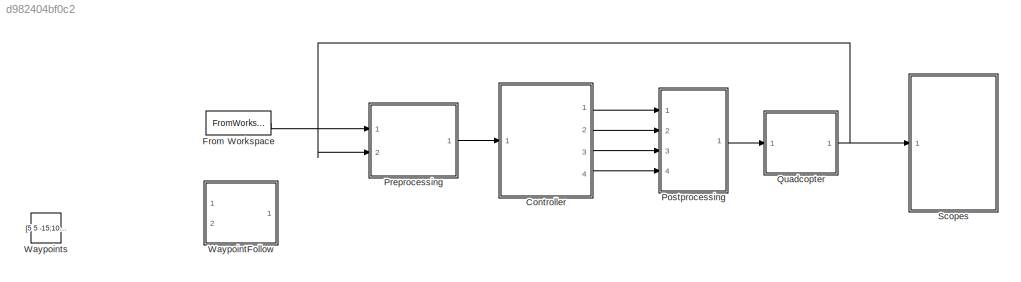
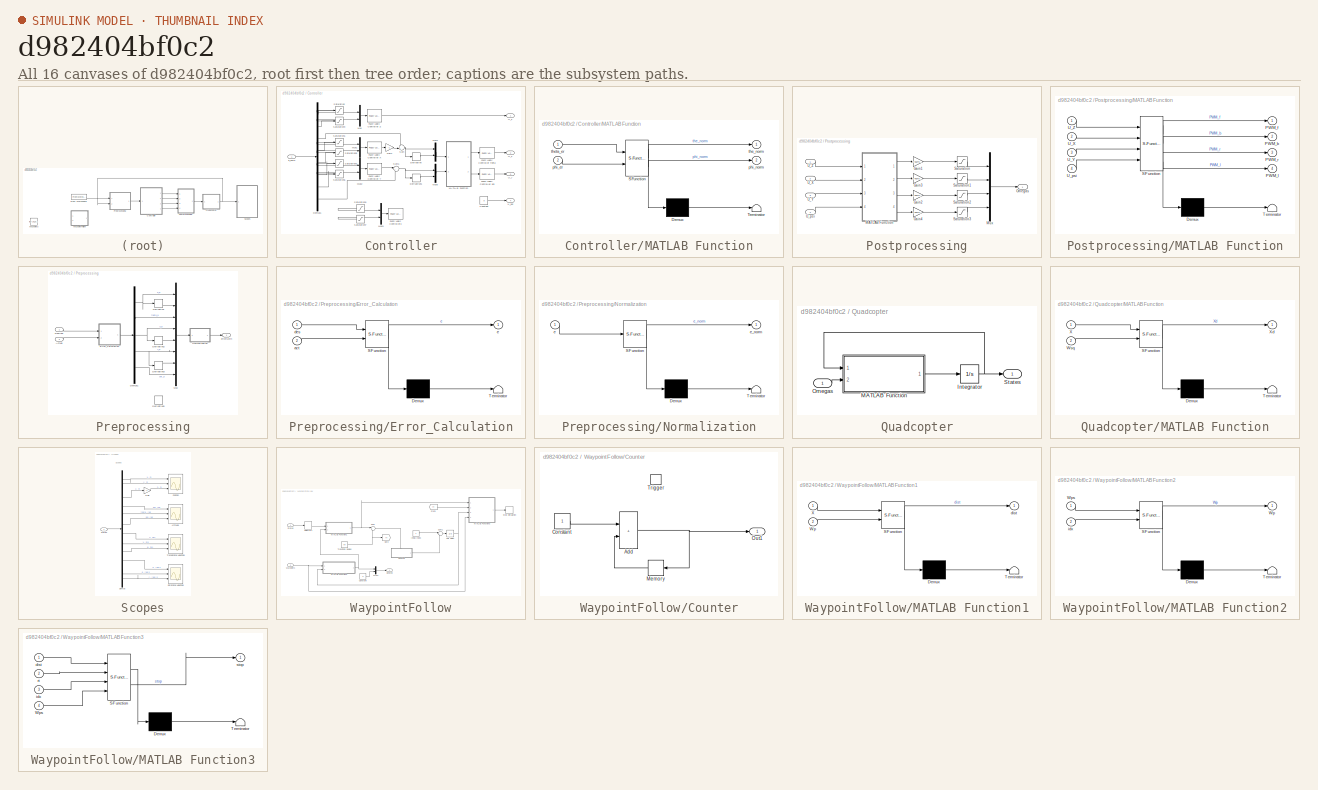
[diagram: thumbnail index - all 16 canvases of the model, root first then tree order]
MODEL slx_d982404bf0c2
KIND model
CONFIG AbsTol = auto
CONFIG EnableMultiTasking = off
CONFIG FixedStep = auto
CONFIG MaxStep = auto
CONFIG MinStep = auto
CONFIG RelTol = 1e-3
CONFIG SampleTimeConstraint = Unconstrained
CONFIG SolverName = VariableStepAuto
CONFIG StartTime = 0.0
CONFIG StopTime = 10
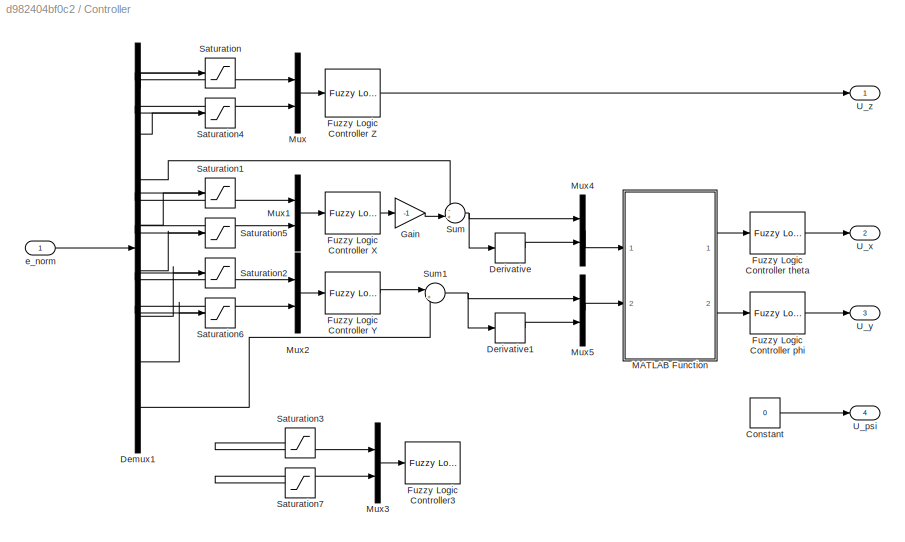
BLOCK [SubSystem] Controller
  Ports = [1, 4]
  RequestExecContextInheritance = off
BLOCK [Constant] Controller/Constant
  Value = 0
BLOCK [Demux] Controller/Demux1
  Outputs = 8
  Ports = [1, 8]
BLOCK [Derivative] Controller/Derivative
  CoefficientInTFapproximation = 1
BLOCK [Derivative] Controller/Derivative1
  CoefficientInTFapproximation = 1
BLOCK [Reference] Controller/Fuzzy Logic Controller X  REF=fuzblock/Fuzzy Logic   (lib defined in mdl_858b3b3e7478)
Controller
  Ports = [1, 1]
  SourceBlock = fuzblock/Fuzzy Logic \nController
  SourceProductBaseCode = FL
  SourceType = Fuzzy Inference System
BLOCK [Reference] Controller/Fuzzy Logic Controller Y  REF=fuzblock/Fuzzy Logic   (lib defined in mdl_858b3b3e7478)
Controller
  Ports = [1, 1]
  SourceBlock = fuzblock/Fuzzy Logic \nController
  SourceProductBaseCode = FL
  SourceType = Fuzzy Inference System
BLOCK [Reference] Controller/Fuzzy Logic Controller Z  REF=fuzblock/Fuzzy Logic   (lib defined in mdl_858b3b3e7478)
Controller
  Ports = [1, 1]
  SourceBlock = fuzblock/Fuzzy Logic \nController
  SourceProductBaseCode = FL
  SourceType = Fuzzy Inference System
BLOCK [Reference] Controller/Fuzzy Logic Controller phi  REF=fuzblock/Fuzzy Logic   (lib defined in mdl_858b3b3e7478)
Controller
  Ports = [1, 1]
  SourceBlock = fuzblock/Fuzzy Logic \nController
  SourceProductBaseCode = FL
  SourceType = Fuzzy Inference System
BLOCK [Reference] Controller/Fuzzy Logic Controller theta  REF=fuzblock/Fuzzy Logic   (lib defined in mdl_858b3b3e7478)
Controller
  Ports = [1, 1]
  SourceBlock = fuzblock/Fuzzy Logic \nController
  SourceProductBaseCode = FL
  SourceType = Fuzzy Inference System
BLOCK [Reference] Controller/Fuzzy Logic Controller3  REF=fuzblock/Fuzzy Logic   (lib defined in mdl_858b3b3e7478)
Controller
  Commented = on
  Ports = [1, 1]
  SourceBlock = fuzblock/Fuzzy Logic \nController
  SourceProductBaseCode = FL
  SourceType = Fuzzy Inference System
BLOCK [Gain] Controller/Gain
  Gain = -1
BLOCK [SubSystem] Controller/MATLAB Function
  ErrorFcn = Stateflow.Translate.translate
  PermitHierarchicalResolution = ExplicitOnly
  Ports = [2, 2]
  RequestExecContextInheritance = off
  SFBlockType = MATLAB Function
  TreatAsAtomicUnit = on
BLOCK [Demux] Controller/MATLAB Function/ Demux 
  Outputs = 1
  Ports = [1, 1]
BLOCK [S-Function] Controller/MATLAB Function/ SFunction 
  EnableBusSupport = on
  FunctionName = sf_sfun
  PortCounts = [2 3]
  Ports = [2, 3]
  SFcnIsStateOwnerBlock = off
  SFunctionDeploymentMode = off
  Tag = Stateflow S-Function 5
BLOCK [Terminator] Controller/MATLAB Function/ Terminator 
BLOCK [Inport] Controller/MATLAB Function/phi_er
  Port = 2
BLOCK [Outport] Controller/MATLAB Function/phi_norm
  Port = 2
  VectorParamsAs1DForOutWhenUnconnected = off
BLOCK [Outport] Controller/MATLAB Function/the_norm
  VectorParamsAs1DForOutWhenUnconnected = off
BLOCK [Inport] Controller/MATLAB Function/theta_er
BLOCK [Mux] Controller/Mux
  DisplayOption = bar
  Inputs = 2
  Ports = [2, 1]
BLOCK [Mux] Controller/Mux1
  DisplayOption = bar
  Inputs = 2
  Ports = [2, 1]
BLOCK [Mux] Controller/Mux2
  DisplayOption = bar
  Inputs = 2
  Ports = [2, 1]
BLOCK [Mux] Controller/Mux3
  Commented = on
  DisplayOption = bar
  Inputs = 2
  Ports = [2, 1]
BLOCK [Mux] Controller/Mux4
  DisplayOption = bar
  Inputs = 2
  Ports = [2, 1]
BLOCK [Mux] Controller/Mux5
  DisplayOption = bar
  Inputs = 2
  Ports = [2, 1]
BLOCK [Saturate] Controller/Saturation
  LowerLimit = -1
  UpperLimit = 1
  ZeroCross = off
BLOCK [Saturate] Controller/Saturation1
  LowerLimit = -1
  UpperLimit = 1
  ZeroCross = off
BLOCK [Saturate] Controller/Saturation2
  LowerLimit = -1
  UpperLimit = 1
  ZeroCross = off
BLOCK [Saturate] Controller/Saturation3
  Commented = on
  LowerLimit = -1
  UpperLimit = 1
  ZeroCross = off
BLOCK [Saturate] Controller/Saturation4
  LowerLimit = -3
  UpperLimit = 3
  ZeroCross = off
BLOCK [Saturate] Controller/Saturation5
  LowerLimit = -3
  UpperLimit = 3
  ZeroCross = off
BLOCK [Saturate] Controller/Saturation6
  LowerLimit = -3
  UpperLimit = 3
  ZeroCross = off
BLOCK [Saturate] Controller/Saturation7
  Commented = on
  LowerLimit = -3
  UpperLimit = 3
  ZeroCross = off
BLOCK [Sum] Controller/Sum
  Inputs = -+|
  Ports = [2, 1]
BLOCK [Sum] Controller/Sum1
  Inputs = |+-
  Ports = [2, 1]
BLOCK [Outport] Controller/U_psi
  Port = 4
  VectorParamsAs1DForOutWhenUnconnected = off
BLOCK [Outport] Controller/U_x
  Port = 2
  VectorParamsAs1DForOutWhenUnconnected = off
BLOCK [Outport] Controller/U_y
  Port = 3
  VectorParamsAs1DForOutWhenUnconnected = off
BLOCK [Outport] Controller/U_z
  VectorParamsAs1DForOutWhenUnconnected = off
BLOCK [Inport] Controller/e_norm
BLOCK [FromWorkspace] From Workspace
  VariableName = Waypoints
BLOCK [SubSystem] Postprocessing
  Ports = [4, 1]
  RequestExecContextInheritance = off
BLOCK [Gain] Postprocessing/Gain1
  Gain = 0.468*9.81/(4*2.98e-6)
BLOCK [Gain] Postprocessing/Gain2
  Gain = 0.468*9.81/(4*2.98e-6)
BLOCK [Gain] Postprocessing/Gain3
  Gain = 0.468*9.81/(4*2.98e-6)
BLOCK [Gain] Postprocessing/Gain4
  Gain = 0.468*9.81/(4*2.98e-6)
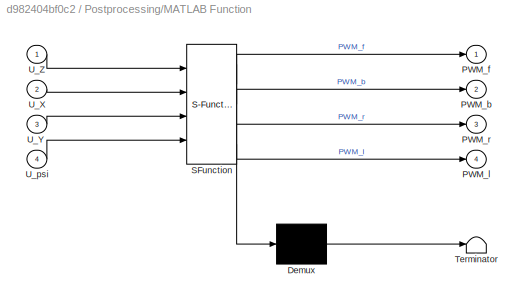
BLOCK [SubSystem] Postprocessing/MATLAB Function
  ErrorFcn = Stateflow.Translate.translate
  PermitHierarchicalResolution = ExplicitOnly
  Ports = [4, 4]
  RequestExecContextInheritance = off
  SFBlockType = MATLAB Function
  TreatAsAtomicUnit = on
BLOCK [Demux] Postprocessing/MATLAB Function/ Demux 
  Outputs = 1
  Ports = [1, 1]
BLOCK [S-Function] Postprocessing/MATLAB Function/ SFunction 
  EnableBusSupport = on
  FunctionName = sf_sfun
  PortCounts = [4 5]
  Ports = [4, 5]
  SFcnIsStateOwnerBlock = off
  SFunctionDeploymentMode = off
  Tag = Stateflow S-Function 4
BLOCK [Terminator] Postprocessing/MATLAB Function/ Terminator 
BLOCK [Outport] Postprocessing/MATLAB Function/PWM_b
  Port = 2
  VectorParamsAs1DForOutWhenUnconnected = off
BLOCK [Outport] Postprocessing/MATLAB Function/PWM_f
  VectorParamsAs1DForOutWhenUnconnected = off
BLOCK [Outport] Postprocessing/MATLAB Function/PWM_l
  Port = 4
  VectorParamsAs1DForOutWhenUnconnected = off
BLOCK [Outport] Postprocessing/MATLAB Function/PWM_r
  Port = 3
  VectorParamsAs1DForOutWhenUnconnected = off
BLOCK [Inport] Postprocessing/MATLAB Function/U_X
  Port = 2
BLOCK [Inport] Postprocessing/MATLAB Function/U_Y
  Port = 3
BLOCK [Inport] Postprocessing/MATLAB Function/U_Z
BLOCK [Inport] Postprocessing/MATLAB Function/U_psi
  Port = 4
BLOCK [Mux] Postprocessing/Mux
  DisplayOption = bar
  Ports = [4, 1]
BLOCK [Outport] Postprocessing/Omegas
  VectorParamsAs1DForOutWhenUnconnected = off
BLOCK [Saturate] Postprocessing/Saturation
  LowerLimit = 0
  UpperLimit = 1000000
  ZeroCross = off
BLOCK [Saturate] Postprocessing/Saturation1
  LowerLimit = 0
  UpperLimit = 1000000
  ZeroCross = off
BLOCK [Saturate] Postprocessing/Saturation2
  LowerLimit = 0
  UpperLimit = 1000000
  ZeroCross = off
BLOCK [Saturate] Postprocessing/Saturation3
  LowerLimit = 0
  UpperLimit = 1000000
  ZeroCross = off
BLOCK [Inport] Postprocessing/U_X
  Port = 2
BLOCK [Inport] Postprocessing/U_Y
  Port = 3
BLOCK [Inport] Postprocessing/U_Z
BLOCK [Inport] Postprocessing/U_psi
  Port = 4
BLOCK [SubSystem] Preprocessing
  Ports = [2, 1]
  RequestExecContextInheritance = off
BLOCK [Inport] Preprocessing/Actual
  Port = 2
BLOCK [Demux] Preprocessing/Demux1
  Outputs = 5
  Ports = [1, 5]
BLOCK [Derivative] Preprocessing/Derivative
  CoefficientInTFapproximation = 1
BLOCK [Derivative] Preprocessing/Derivative2
  CoefficientInTFapproximation = 1
BLOCK [Derivative] Preprocessing/Derivative3
  CoefficientInTFapproximation = 1
BLOCK [Derivative] Preprocessing/Derivative5
  CoefficientInTFapproximation = 1
  Commented = on
BLOCK [Inport] Preprocessing/Desired
BLOCK [SubSystem] Preprocessing/Error_Calculation
  ErrorFcn = Stateflow.Translate.translate
  PermitHierarchicalResolution = ExplicitOnly
  Ports = [2, 1]
  RequestExecContextInheritance = off
  SFBlockType = MATLAB Function
  TreatAsAtomicUnit = on
BLOCK [Demux] Preprocessing/Error_Calculation/ Demux 
  Outputs = 1
  Ports = [1, 1]
BLOCK [S-Function] Preprocessing/Error_Calculation/ SFunction 
  EnableBusSupport = on
  FunctionName = sf_sfun
  PortCounts = [2 2]
  Ports = [2, 2]
  SFcnIsStateOwnerBlock = off
  SFunctionDeploymentMode = off
  Tag = Stateflow S-Function 1
BLOCK [Terminator] Preprocessing/Error_Calculation/ Terminator 
BLOCK [Inport] Preprocessing/Error_Calculation/act
  Port = 2
BLOCK [Inport] Preprocessing/Error_Calculation/des
BLOCK [Outport] Preprocessing/Error_Calculation/e
  VectorParamsAs1DForOutWhenUnconnected = off
BLOCK [Mux] Preprocessing/Mux
  DisplayOption = bar
  Inputs = 8
  Ports = [8, 1]
BLOCK [SubSystem] Preprocessing/Normalization
  ErrorFcn = Stateflow.Translate.translate
  PermitHierarchicalResolution = ExplicitOnly
  Ports = [1, 1]
  RequestExecContextInheritance = off
  SFBlockType = MATLAB Function
  TreatAsAtomicUnit = on
BLOCK [Demux] Preprocessing/Normalization/ Demux 
  Outputs = 1
  Ports = [1, 1]
BLOCK [S-Function] Preprocessing/Normalization/ SFunction 
  EnableBusSupport = on
  FunctionName = sf_sfun
  PortCounts = [1 2]
  Ports = [1, 2]
  SFcnIsStateOwnerBlock = off
  SFunctionDeploymentMode = off
  Tag = Stateflow S-Function 3
BLOCK [Terminator] Preprocessing/Normalization/ Terminator 
BLOCK [Inport] Preprocessing/Normalization/e
BLOCK [Outport] Preprocessing/Normalization/e_norm
  VectorParamsAs1DForOutWhenUnconnected = off
BLOCK [Outport] Preprocessing/errorNorm
  VectorParamsAs1DForOutWhenUnconnected = off
BLOCK [SubSystem] Quadcopter
  Ports = [1, 1]
  RequestExecContextInheritance = off
BLOCK [Integrator] Quadcopter/Integrator
  InitialCondition = [0;0;0;0;0;0;0;0;0;0;0;0]
  Ports = [1, 1]
BLOCK [SubSystem] Quadcopter/MATLAB Function
  ErrorFcn = Stateflow.Translate.translate
  PermitHierarchicalResolution = ExplicitOnly
  Ports = [2, 1]
  RequestExecContextInheritance = off
  SFBlockType = MATLAB Function
  TreatAsAtomicUnit = on
BLOCK [Demux] Quadcopter/MATLAB Function/ Demux 
  Outputs = 1
  Ports = [1, 1]
BLOCK [S-Function] Quadcopter/MATLAB Function/ SFunction 
  EnableBusSupport = on
  FunctionName = sf_sfun
  PortCounts = [2 2]
  Ports = [2, 2]
  SFcnIsStateOwnerBlock = off
  SFunctionDeploymentMode = off
  Tag = Stateflow S-Function 2
BLOCK [Terminator] Quadcopter/MATLAB Function/ Terminator 
BLOCK [Inport] Quadcopter/MATLAB Function/Wsq
  Port = 2
BLOCK [Inport] Quadcopter/MATLAB Function/X
BLOCK [Outport] Quadcopter/MATLAB Function/Xd
  VectorParamsAs1DForOutWhenUnconnected = off
BLOCK [Inport] Quadcopter/Omegas
BLOCK [Outport] Quadcopter/States
  VectorParamsAs1DForOutWhenUnconnected = off
BLOCK [SubSystem] Scopes
  Ports = [1]
  RequestExecContextInheritance = off
BLOCK [Scope] Scopes/Attitude
  Floating = off
  NumInputPorts = 3
  Ports = [3]
  ScopeSpecificationString = Simulink.scopes.TimeScopeBlockCfg('CurrentConfiguration', extmgr.ConfigurationSet(extmgr.Configuration('Core','General UI',true),extmgr.Configuration('Core','Source UI',true),extmgr.Configuration('Sources','WiredSimulink',true,'DataLoggingVariableName','Attitude','DataLogging',true,'DataLoggingSaveFormat','StructureWithTime'),extmgr.Configuration('Visuals','Time Domain',true,'SerializedDisplays',{...<+2766ch>
BLOCK [Demux] Scopes/Demux
  Outputs = 12
  Ports = [1, 12]
BLOCK [Gain] Scopes/Gain
  Gain = -1
BLOCK [Scope] Scopes/Position
  Floating = off
  NumInputPorts = 3
  Ports = [3]
  ScopeSpecificationString = Simulink.scopes.TimeScopeBlockCfg('CurrentConfiguration', extmgr.ConfigurationSet(extmgr.Configuration('Core','General UI',true),extmgr.Configuration('Core','Source UI',true),extmgr.Configuration('Sources','WiredSimulink',true,'DataLogging',true,'DataLoggingVariableName','Position','DataLoggingSaveFormat','StructureWithTime'),extmgr.Configuration('Visuals','Time Domain',true,'SerializedDisplays',{...<+2769ch>
BLOCK [Scope] Scopes/Rotational Velocities
  Floating = off
  NumInputPorts = 3
  Ports = [3]
  ScopeSpecificationString = Simulink.scopes.TimeScopeBlockCfg('CurrentConfiguration', extmgr.ConfigurationSet(extmgr.Configuration('Core','General UI',true),extmgr.Configuration('Core','Source UI',true),extmgr.Configuration('Sources','WiredSimulink',true,'DataLoggingVariableName','ScopeData3'),extmgr.Configuration('Visuals','Time Domain',true,'SerializedDisplays',{struct('MinYLimReal','-1.00000','MaxYLimReal','1.00000','YLab...<+2721ch>
BLOCK [Inport] Scopes/States
BLOCK [Scope] Scopes/Translational Velocities
  Floating = off
  NumInputPorts = 3
  Ports = [3]
  ScopeSpecificationString = Simulink.scopes.TimeScopeBlockCfg('CurrentConfiguration', extmgr.ConfigurationSet(extmgr.Configuration('Core','General UI',true),extmgr.Configuration('Core','Source UI',true),extmgr.Configuration('Sources','WiredSimulink',true,'DataLoggingVariableName','ScopeData2'),extmgr.Configuration('Visuals','Time Domain',true,'SerializedDisplays',{struct('MinYLimReal','-1.00000','MaxYLimReal','1.00000','YLab...<+2714ch>
BLOCK [SubSystem] WaypointFollow
  Commented = on
  Ports = [2, 1]
  RequestExecContextInheritance = off
BLOCK [Constant] WaypointFollow/Constant
  Value = 0
BLOCK [SubSystem] WaypointFollow/Counter
  Ports = [0, 1, 0, 1]
  RequestExecContextInheritance = off
  TreatAsAtomicUnit = on
BLOCK [Sum] WaypointFollow/Counter/Add
  IconShape = rectangular
  Ports = [2, 1]
BLOCK [Constant] WaypointFollow/Counter/Constant
BLOCK [Memory] WaypointFollow/Counter/Memory
  InheritSampleTime = on
BLOCK [Outport] WaypointFollow/Counter/Out1
BLOCK [TriggerPort] WaypointFollow/Counter/Trigger
  Ports = []
  StatesWhenEnabling = held
  TriggerType = falling
  VariantControl = (inherit)
BLOCK [Outport] WaypointFollow/Desired
BLOCK [From] WaypointFollow/From
  GotoTag = rt
BLOCK [Goto] WaypointFollow/Goto
  GotoTag = rt
BLOCK [Constant] WaypointFollow/Initial Index
BLOCK [SubSystem] WaypointFollow/MATLAB Function1
  ErrorFcn = Stateflow.Translate.translate
  PermitHierarchicalResolution = ExplicitOnly
  Ports = [2, 1]
  RequestExecContextInheritance = off
  SFBlockType = MATLAB Function
  TreatAsAtomicUnit = on
BLOCK [Demux] WaypointFollow/MATLAB Function1/ Demux 
  Outputs = 1
  Ports = [1, 1]
BLOCK [S-Function] WaypointFollow/MATLAB Function1/ SFunction 
  EnableBusSupport = on
  FunctionName = sf_sfun
  PortCounts = [2 2]
  Ports = [2, 2]
  SFcnIsStateOwnerBlock = off
  SFunctionDeploymentMode = off
  Tag = Stateflow S-Function 7
BLOCK [Terminator] WaypointFollow/MATLAB Function1/ Terminator 
BLOCK [Inport] WaypointFollow/MATLAB Function1/Wp
  Port = 2
BLOCK [Inport] WaypointFollow/MATLAB Function1/X
BLOCK [Outport] WaypointFollow/MATLAB Function1/dist
BLOCK [SubSystem] WaypointFollow/MATLAB Function2
  ErrorFcn = Stateflow.Translate.translate
  PermitHierarchicalResolution = ExplicitOnly
  Ports = [2, 1]
  RequestExecContextInheritance = off
  SFBlockType = MATLAB Function
  TreatAsAtomicUnit = on
BLOCK [Demux] WaypointFollow/MATLAB Function2/ Demux 
  Outputs = 1
  Ports = [1, 1]
BLOCK [S-Function] WaypointFollow/MATLAB Function2/ SFunction 
  EnableBusSupport = on
  FunctionName = sf_sfun
  PortCounts = [2 2]
  Ports = [2, 2]
  SFcnIsStateOwnerBlock = off
  SFunctionDeploymentMode = off
  Tag = Stateflow S-Function 8
BLOCK [Terminator] WaypointFollow/MATLAB Function2/ Terminator 
BLOCK [Outport] WaypointFollow/MATLAB Function2/Wp
BLOCK [Inport] WaypointFollow/MATLAB Function2/Wps
BLOCK [Inport] WaypointFollow/MATLAB Function2/idx
  Port = 2
BLOCK [SubSystem] WaypointFollow/MATLAB Function3
  ErrorFcn = Stateflow.Translate.translate
  PermitHierarchicalResolution = ExplicitOnly
  Ports = [4, 1]
  RequestExecContextInheritance = off
  SFBlockType = MATLAB Function
  TreatAsAtomicUnit = on
BLOCK [Demux] WaypointFollow/MATLAB Function3/ Demux 
  Outputs = 1
  Ports = [1, 1]
BLOCK [S-Function] WaypointFollow/MATLAB Function3/ SFunction 
  EnableBusSupport = on
  FunctionName = sf_sfun
  PortCounts = [4 2]
  Ports = [4, 2]
  SFcnIsStateOwnerBlock = off
  SFunctionDeploymentMode = off
  Tag = Stateflow S-Function 9
BLOCK [Terminator] WaypointFollow/MATLAB Function3/ Terminator 
BLOCK [Inport] WaypointFollow/MATLAB Function3/Wps
  Port = 4
BLOCK [Inport] WaypointFollow/MATLAB Function3/dist
BLOCK [Inport] WaypointFollow/MATLAB Function3/idx
  Port = 3
BLOCK [Inport] WaypointFollow/MATLAB Function3/rt
  Port = 2
BLOCK [Outport] WaypointFollow/MATLAB Function3/stop
BLOCK [Mux] WaypointFollow/Mux2
  DisplayOption = bar
  Inputs = 2
  Ports = [2, 1]
BLOCK [Selector] WaypointFollow/Selector1
  IndexOptions = Index vector (dialog)
  Indices = [1 2 3]
  InputPortWidth = 12
  OutputSizes = 1
  Ports = [1, 1]
BLOCK [Inport] WaypointFollow/States
BLOCK [Stop] WaypointFollow/Stop Simulation
BLOCK [Sum] WaypointFollow/Sum
  Inputs = |+-
  Ports = [2, 1]
BLOCK [Sum] WaypointFollow/Sum1
  Inputs = |++
  Ports = [2, 1]
BLOCK [Constant] WaypointFollow/Transition Radius
  Value = 0.4
BLOCK [UnitDelay] WaypointFollow/Unit Delay
  HasFrameUpgradeWarning = on
  InitialCondition = 1
  SampleTime = -1
BLOCK [Inport] WaypointFollow/Waypoints
  Port = 2
BLOCK [Constant] Waypoints
  Commented = on
  Value = [5 5 -15;10 5 -20;10 0 -25]
  VectorParams1D = off
ANNOTATION Scopes: Scopes
LINE Controller/Constant:1 -> Controller/U_psi:1
LINE Controller/Demux1:1 -> Controller/Saturation:1
LINE Controller/Demux1:2 -> Controller/Saturation4:1
LINE Controller/Demux1:3 -> Controller/Sum:1
LINE Controller/Demux1:4 -> Controller/Saturation1:1
LINE Controller/Demux1:5 -> Controller/Saturation5:1
LINE Controller/Demux1:6 -> Controller/Saturation2:1
LINE Controller/Demux1:7 -> Controller/Saturation6:1
LINE Controller/Demux1:8 -> Controller/Sum1:2
LINE Controller/Derivative1:1 -> Controller/Mux5:2
LINE Controller/Derivative:1 -> Controller/Mux4:2
LINE Controller/Fuzzy Logic Controller X:1 -> Controller/Gain:1
LINE Controller/Fuzzy Logic Controller Y:1 -> Controller/Sum1:1
LINE Controller/Fuzzy Logic Controller Z:1 -> Controller/U_z:1
LINE Controller/Fuzzy Logic Controller phi:1 -> Controller/U_y:1
LINE Controller/Fuzzy Logic Controller theta:1 -> Controller/U_x:1
LINE Controller/Gain:1 -> Controller/Sum:2
LINE Controller/MATLAB Function:1 -> Controller/Fuzzy Logic Controller theta:1
LINE Controller/MATLAB Function:2 -> Controller/Fuzzy Logic Controller phi:1
LINE Controller/Mux1:1 -> Controller/Fuzzy Logic Controller X:1
LINE Controller/Mux2:1 -> Controller/Fuzzy Logic Controller Y:1
LINE Controller/Mux3:1 -> Controller/Fuzzy Logic Controller3:1
LINE Controller/Mux4:1 -> Controller/MATLAB Function:1
LINE Controller/Mux5:1 -> Controller/MATLAB Function:2
LINE Controller/Mux:1 -> Controller/Fuzzy Logic Controller Z:1
LINE Controller/Saturation1:1 -> Controller/Mux1:1
LINE Controller/Saturation2:1 -> Controller/Mux2:1
LINE Controller/Saturation3:1 -> Controller/Mux3:1
LINE Controller/Saturation4:1 -> Controller/Mux:2
LINE Controller/Saturation5:1 -> Controller/Mux1:2
LINE Controller/Saturation6:1 -> Controller/Mux2:2
LINE Controller/Saturation7:1 -> Controller/Mux3:2
LINE Controller/Saturation:1 -> Controller/Mux:1
NET Controller/Sum1:1 -> Controller/Derivative1:1, Controller/Mux5:1
NET Controller/Sum:1 -> Controller/Derivative:1, Controller/Mux4:1
LINE Controller/e_norm:1 -> Controller/Demux1:1
LINE Controller:1 -> Postprocessing:1
LINE Controller:2 -> Postprocessing:2
LINE Controller:3 -> Postprocessing:3
LINE Controller:4 -> Postprocessing:4
LINE From Workspace:1 -> Preprocessing:1
LINE Postprocessing/Gain1:1 -> Postprocessing/Saturation:1
LINE Postprocessing/Gain2:1 -> Postprocessing/Saturation2:1
LINE Postprocessing/Gain3:1 -> Postprocessing/Saturation1:1
LINE Postprocessing/Gain4:1 -> Postprocessing/Saturation3:1
LINE Postprocessing/MATLAB Function:1 -> Postprocessing/Gain1:1
LINE Postprocessing/MATLAB Function:2 -> Postprocessing/Gain3:1
LINE Postprocessing/MATLAB Function:3 -> Postprocessing/Gain2:1
LINE Postprocessing/MATLAB Function:4 -> Postprocessing/Gain4:1
LINE Postprocessing/Mux:1 -> Postprocessing/Omegas:1
LINE Postprocessing/Saturation1:1 -> Postprocessing/Mux:2
LINE Postprocessing/Saturation2:1 -> Postprocessing/Mux:3
LINE Postprocessing/Saturation3:1 -> Postprocessing/Mux:4
LINE Postprocessing/Saturation:1 -> Postprocessing/Mux:1
LINE Postprocessing/U_X:1 -> Postprocessing/MATLAB Function:2
LINE Postprocessing/U_Y:1 -> Postprocessing/MATLAB Function:3
LINE Postprocessing/U_Z:1 -> Postprocessing/MATLAB Function:1
LINE Postprocessing/U_psi:1 -> Postprocessing/MATLAB Function:4
LINE Postprocessing:1 -> Quadcopter:1
LINE Preprocessing/Actual:1 -> Preprocessing/Error_Calculation:2
NET Preprocessing/Demux1:1 -> Preprocessing/Derivative:1, Preprocessing/Mux:1
LINE Preprocessing/Demux1:2 -> Preprocessing/Mux:3
NET Preprocessing/Demux1:3 -> Preprocessing/Derivative2:1, Preprocessing/Mux:4
NET Preprocessing/Demux1:4 -> Preprocessing/Derivative3:1, Preprocessing/Mux:6
LINE Preprocessing/Demux1:5 -> Preprocessing/Mux:8
LINE Preprocessing/Derivative2:1 -> Preprocessing/Mux:5
LINE Preprocessing/Derivative3:1 -> Preprocessing/Mux:7
LINE Preprocessing/Derivative:1 -> Preprocessing/Mux:2
LINE Preprocessing/Desired:1 -> Preprocessing/Error_Calculation:1
LINE Preprocessing/Error_Calculation:1 -> Preprocessing/Demux1:1
LINE Preprocessing/Mux:1 -> Preprocessing/Normalization:1
LINE Preprocessing/Normalization:1 -> Preprocessing/errorNorm:1
LINE Preprocessing:1 -> Controller:1
NET Quadcopter/Integrator:1 -> Quadcopter/MATLAB Function:1, Quadcopter/States:1
LINE Quadcopter/MATLAB Function:1 -> Quadcopter/Integrator:1
LINE Quadcopter/Omegas:1 -> Quadcopter/MATLAB Function:2
NET Quadcopter:1 -> Preprocessing:2, Scopes:1
LINE Scopes/Demux:1 -> Scopes/Position:1
LINE Scopes/Demux:10 -> Scopes/Rotational Velocities:1
LINE Scopes/Demux:11 -> Scopes/Rotational Velocities:2
LINE Scopes/Demux:12 -> Scopes/Rotational Velocities:3
LINE Scopes/Demux:2 -> Scopes/Position:2
LINE Scopes/Demux:3 -> Scopes/Gain:1
LINE Scopes/Demux:4 -> Scopes/Attitude:1
LINE Scopes/Demux:5 -> Scopes/Attitude:2
LINE Scopes/Demux:6 -> Scopes/Attitude:3
LINE Scopes/Demux:7 -> Scopes/Translational Velocities:1
LINE Scopes/Demux:8 -> Scopes/Translational Velocities:2
LINE Scopes/Demux:9 -> Scopes/Translational Velocities:3
LINE Scopes/Gain:1 -> Scopes/Position:3
LINE Scopes/States:1 -> Scopes/Demux:1
LINE WaypointFollow/Constant:1 -> WaypointFollow/Mux2:2
NET WaypointFollow/Counter/Add:1 -> WaypointFollow/Counter/Memory:1, WaypointFollow/Counter/Out1:1
LINE WaypointFollow/Counter/Constant:1 -> WaypointFollow/Counter/Add:1
LINE WaypointFollow/Counter/Memory:1 -> WaypointFollow/Counter/Add:2
LINE WaypointFollow/Counter:1 -> WaypointFollow/Sum1:2
LINE WaypointFollow/From:1 -> WaypointFollow/MATLAB Function3:2
LINE WaypointFollow/Initial Index:1 -> WaypointFollow/Sum1:1
NET WaypointFollow/MATLAB Function1:1 -> WaypointFollow/MATLAB Function3:1, WaypointFollow/Sum:1
NET WaypointFollow/MATLAB Function2:1 -> WaypointFollow/MATLAB Function1:2, WaypointFollow/Mux2:1
LINE WaypointFollow/MATLAB Function3:1 -> WaypointFollow/Stop Simulation:1
LINE WaypointFollow/Mux2:1 -> WaypointFollow/Desired:1
LINE WaypointFollow/Selector1:1 -> WaypointFollow/MATLAB Function1:1
LINE WaypointFollow/States:1 -> WaypointFollow/Selector1:1
LINE WaypointFollow/Sum1:1 -> WaypointFollow/Unit Delay:1
LINE WaypointFollow/Sum:1 -> WaypointFollow/Counter:trigger
NET WaypointFollow/Transition Radius:1 -> WaypointFollow/Goto:1, WaypointFollow/Sum:2
NET WaypointFollow/Unit Delay:1 -> WaypointFollow/MATLAB Function2:2, WaypointFollow/MATLAB Function3:3
NET WaypointFollow/Waypoints:1 -> WaypointFollow/MATLAB Function2:1, WaypointFollow/MATLAB Function3:4
note: NET lines group one-source signal fan-out (src -> all destinations, sorted); 1:1 wires keep LINE
CHART Preprocessing/Error_Calculation states=1 transitions=1
  STATE_LABEL 'eML_blk_kernel()'
  STATE_LABEL 'SCRIPT:\nfunction e = fcn(des, act)\n\nX_des = des(1,1); Y_des = des(1,2); Z_des = des(1,3);\n% phi_des = des(4,1); theta_des = des(5,1); \n% psi_des = des(4,1);\n\nX_act = act(1,1); Y_act = act(2,1); Z_act = act(3,1);\nphi_act = act(4,1); theta_act = act(5,1); \n% psi_act = act(6,1);\n\nex      = X_des - X_act;\ney      = Y_des - Y_act;\nez      = Z_des - Z_act;\n% ephi    = phi_des - phi_act;\n% etheta  = thet...<+97ch>'
CHART Quadcopter/MATLAB Function states=1 transitions=1
  STATE_LABEL 'eML_blk_kernel()'
  STATE_LABEL 'SCRIPT:\nfunction Xd = Quadcopter(X, Wsq)\n% Parameters from Luukkonen\ng = 9.81;\nM = 0.468;\nJx = 4.856e-3;\nJy = 4.856e-3;\nJz = 8.801e-3;\nl = 0.225;\nKT = 2.980e-6;\nKt = 1.140e-7;\n\n% States\nx   = X(1,1);  y   = X(2,1);  z   = X(3,1);\nphi = X(4,1);  the = X(5,1);  psi = X(6,1);\nu   = X(7,1);  v   = X(8,1);  w   = X(9,1);\np   = X(10,1); q   = X(11,1); r   = X(12,1);\n\n% Motor Forces (front, back, right, ...<+1933ch>'
CHART Preprocessing/Normalization states=1 transitions=1
  STATE_LABEL 'eML_blk_kernel()'
  STATE_LABEL 'SCRIPT:\nfunction e_norm = Normalization(e)\n\nZ_e = e(1,1); \nZ_ed = e(2,1); \n\ntheta_a = e(3,1);\n\nX_e = e(4,1); \nX_ed = e(5,1);\n\nY_e = e(6,1);\nY_ed = e(7,1);\n\nphi_a = e(8,1);\n\n% psi_e = e(9,1);\n% psi_ed = e(10,1);\n\nX_max = 10; Y_max = 10; Z_max = 50;\nXd_max = 30; Yd_max = 30; Zd_max = 30;\n% psi_max = pi/3;\n% psid_max = pi/6;\n\nXe_norm = X_e/X_max;\nYe_norm = Y_e/Y_max;\nZe_norm = Z_e/Z_max;\n% phie_norm ...<+308ch>'
CHART Postprocessing/MATLAB Function states=1 transitions=1
  STATE_LABEL 'eML_blk_kernel()'
  STATE_LABEL 'SCRIPT:\nfunction [PWM_f, PWM_b, PWM_r, PWM_l] = fcn(U_Z, U_X, U_Y, U_psi)\n\nPWM_f = 2*(-U_Z + U_X - U_psi) + 1;\nPWM_r = 2*(-U_Z - U_Y + U_psi) + 1;\nPWM_b = 2*(-U_Z - U_X - U_psi) + 1;\nPWM_l = 2*(-U_Z + U_Y + U_psi) + 1;'
CHART Controller/MATLAB Function states=1 transitions=1
  STATE_LABEL 'eML_blk_kernel()'
  STATE_LABEL 'SCRIPT:\nfunction [the_norm, phi_norm] = fcn(theta_er, phi_er)\n\ntheta_e = theta_er(1,1);\ntheta_ed = theta_er(2,1);\n\nphi_e = phi_er(1,1);\nphi_ed = phi_er(2,1);\n\nphi_max = pi/3; theta_max  = pi/3;\nphid_max = pi/6; thetad_max  = pi/6;\n\nphie_norm = min(max(phi_e/phi_max, -1), 1);\nthetae_norm = min(max(theta_e/theta_max, -1), 1);\n\nphied_norm = min(max(3*phi_ed/phid_max, -3), 3);\nthetaed_norm = min(max(3...<+108ch>'
CHART WaypointFollow/MATLAB Function1 states=1 transitions=1
  STATE_LABEL 'eML_blk_kernel()'
  STATE_LABEL 'SCRIPT:\nfunction dist = distance(X, Wp)\n\ndist = sqrt((Wp(1) - X(1))^2 + (Wp(2) - X(2))^2 + (Wp(3) - X(3))^2);\n'
CHART WaypointFollow/MATLAB Function2 states=1 transitions=1
  STATE_LABEL 'eML_blk_kernel()'
  STATE_LABEL "SCRIPT:\nfunction Wp = ChooseWaypoint(Wps, idx)\n\nWp = Wps(idx,:)';\n"
CHART WaypointFollow/MATLAB Function3 states=1 transitions=1
  STATE_LABEL 'eML_blk_kernel()'
  STATE_LABEL 'SCRIPT:\nfunction stop = StopAtLastWp(dist, rt, idx, Wps)\n\n[m,~] = size(Wps);\n\nif idx == m && (dist - rt) <= 5e-2\n    stop = 1;\nelse\n    stop = 0;\nend\n'
CHART  states=0 transitions=0
CHART  states=0 transitions=0
CHART  states=0 transitions=0
CHART  states=0 transitions=0
CHART  states=0 transitions=0
CHART  states=0 transitions=0
CHART  states=0 transitions=0
CHART  states=0 transitions=0
